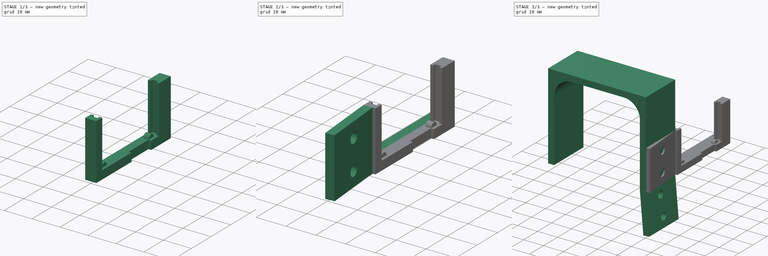
[diagram: build sequence overview — one tinted view per stage of 3, left to right]
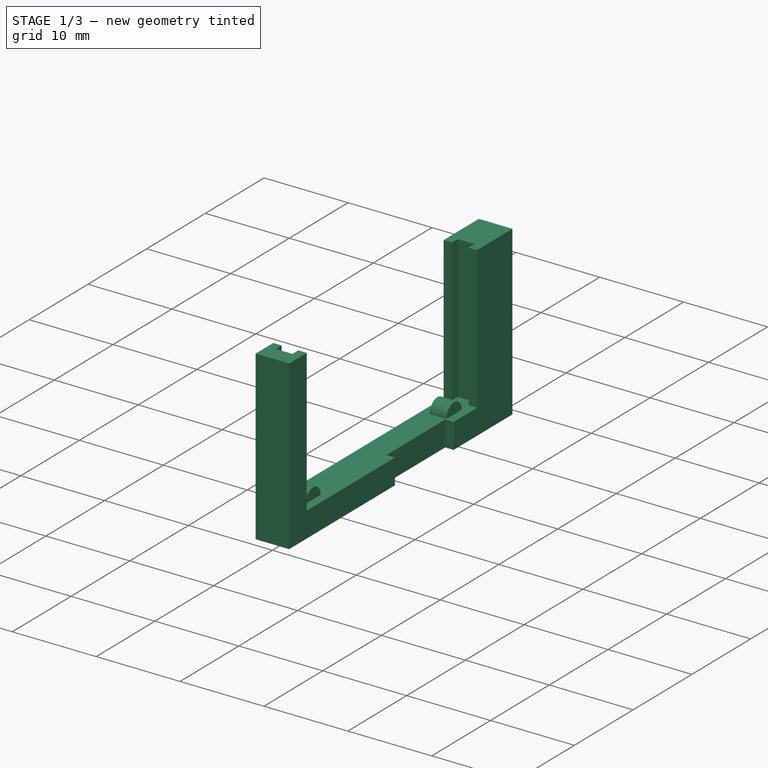
[diagram: stage 1 of 3 — iso view after this stage's code; geometry added in this stage tinted green]
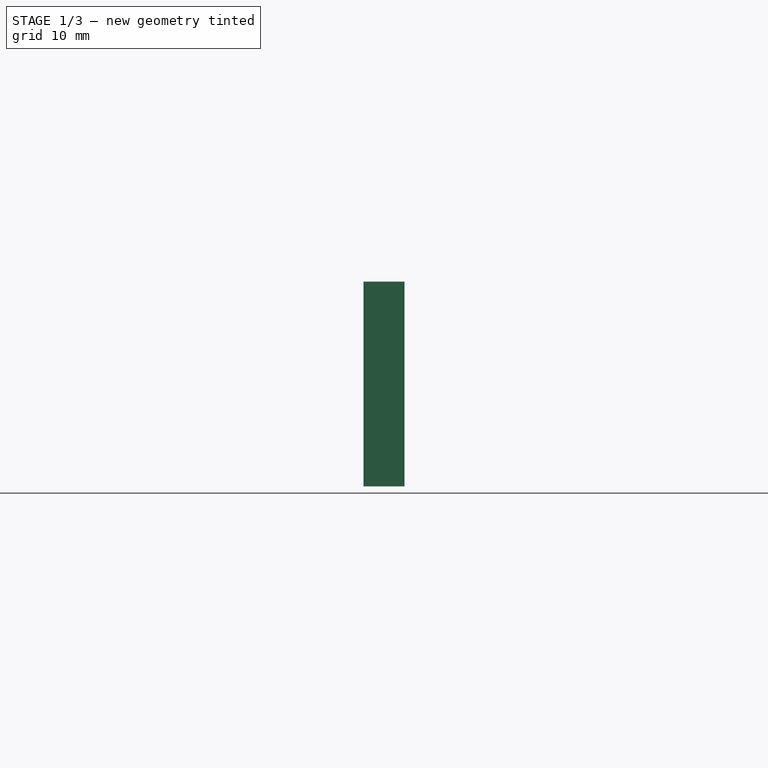
[diagram: stage 1 of 3 — front view after this stage's code; geometry added in this stage tinted green]
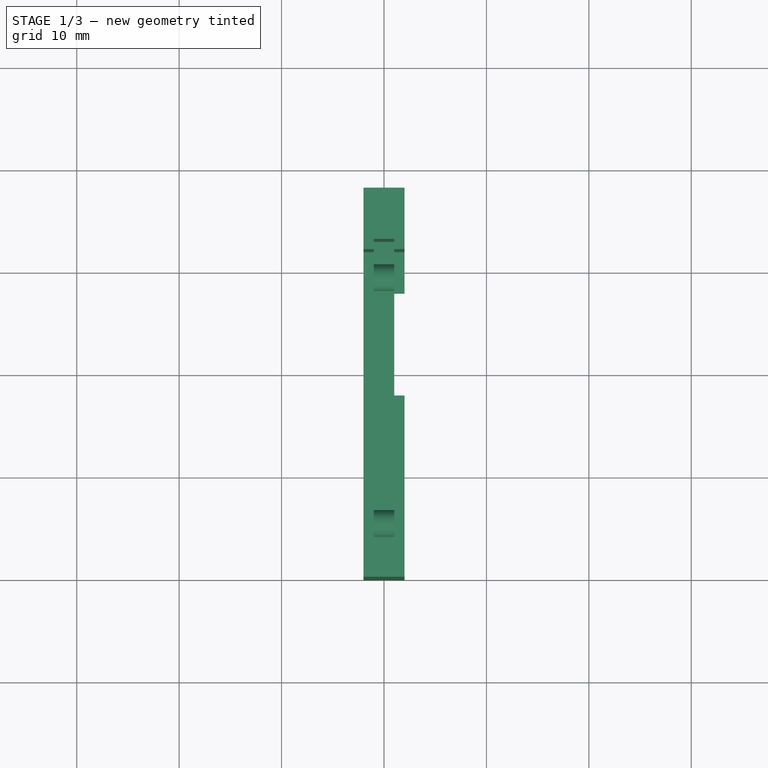
[diagram: stage 1 of 3 — top view after this stage's code; geometry added in this stage tinted green]
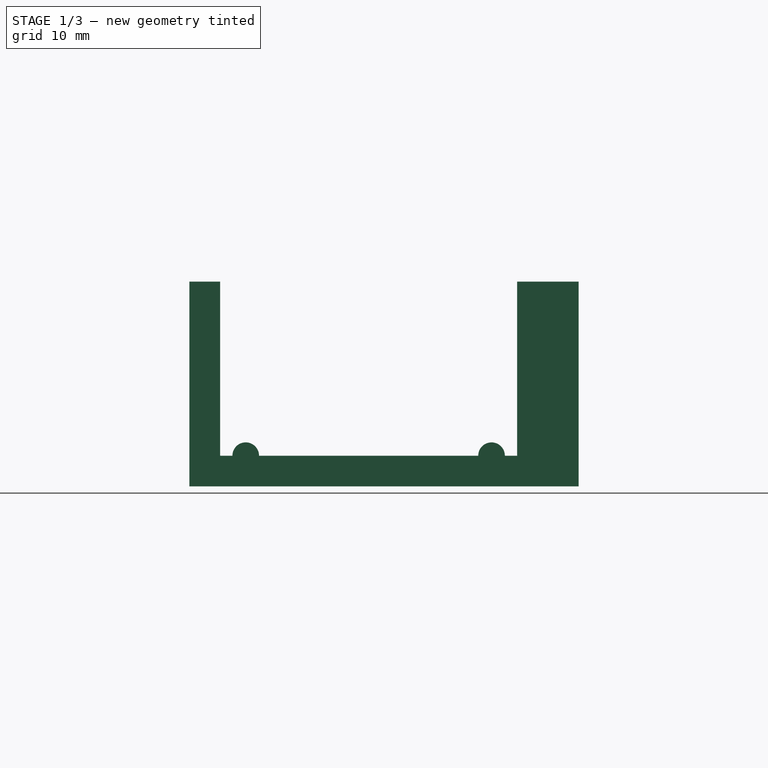
[diagram: stage 1 of 3 — right view after this stage's code; geometry added in this stage tinted green]
FCSTD DOCUMENT  (FreeCAD 1.0R39109 (Git))
Label: KPS-CameraHD 2w
License: All rights reserved
LicenseURL: https://en.wikipedia.org/wiki/All_rights_reserved
objects: Sketcher::SketchObject×7, PartDesign::Pad×7, PartDesign::Body×2, PartDesign::AdditiveBox×1
note: 40 computed .brp shape members not serialized (recipe doc carries the construction recipe); baked Part::Feature solids carry a one-line shape summary decoded from their .brp

FEATURE [PartDesign::Body] Body  label="Clip"
  AllowCompound = false
  Group = -> [Sketch001,Pad001,Sketch,Pad017]
  Origin = -> Origin
  Tip = -> Pad017
FEATURE [Sketcher::SketchObject] Sketch023
  ArcFitTolerance = 0
  AttachmentOffset = pos=(0,0,1) rot=(0,0,1;0rad)
  AttachmentSupport = -> [YZ_Plane004]
  FullyConstrained = true
  MakeInternals = false
  MapMode = 5
  Placement = pos=(1,0,0) rot=(0.57735,0.57735,0.57735;2.0944rad)
  sketch-geometry (12):
    g0: LineSegment StartX=3 StartY=3 StartZ=0 EndX=3 EndY=20 EndZ=0
    g1: LineSegment StartX=3 StartY=20 StartZ=0 EndX=0 EndY=20 EndZ=0
    g2: LineSegment StartX=0 StartY=20 StartZ=0 EndX=0 EndY=0 EndZ=0
    g3: LineSegment StartX=38 StartY=0 StartZ=0 EndX=38 EndY=20 EndZ=0
    g4: LineSegment StartX=38 StartY=20 StartZ=0 EndX=32 EndY=20 EndZ=0
    g5: LineSegment StartX=32 StartY=20 StartZ=0 EndX=32 EndY=3 EndZ=0
    g6: LineSegment StartX=3 StartY=3 StartZ=0 EndX=18 EndY=3 EndZ=0
    g7: LineSegment StartX=32 StartY=3 StartZ=0 EndX=28 EndY=3 EndZ=0
    g8: LineSegment StartX=0 StartY=0 StartZ=0 EndX=18 EndY=0 EndZ=0
    g9: LineSegment StartX=38 StartY=0 StartZ=0 EndX=28 EndY=0 EndZ=0
    g10: LineSegment StartX=18 StartY=3 StartZ=0 EndX=18 EndY=0 EndZ=0
    g11: LineSegment StartX=28 StartY=0 StartZ=0 EndX=28 EndY=3 EndZ=0
  constraints (36):
    c: Vertical(g0)
    c: Coincident(g0,g1)
    c: Horizontal(g1)
    c: Coincident(g1,g2)
    c: Vertical(g2)
    c: Vertical(g3)
    c: Coincident(g3,g4)
    c: Horizontal(g4)
    c: Coincident(g4,g5)
    c: Vertical(g5)
    c: DistanceX(g2) = 0
    c: DistanceY(g2) = 0
    c: DistanceX(g1,g1) = 3
    c: DistanceX(g4,g4) = 6
    c: DistanceX(g0,g5) = 29
    c: DistanceY(g3,g5) = 3
    c: DistanceY(g4,g0) = 0
    c: Coincident(g6,g0)
    c: Horizontal(g6)
    c: Coincident(g7,g5)
    c: Horizontal(g7)
    c: Coincident(g8,g2)
    c: Horizontal(g8)
    c: Coincident(g9,g3)
    c: Horizontal(g9)
    c: DistanceY(g5,g0) = 0
    c: DistanceY(g2,g1) = 20
    c: Coincident(g10,g6)
    c: Coincident(g10,g8)
    c: Coincident(g11,g9)
    c: Coincident(g11,g7)
    c: DistanceY(g8,g9) = 0
    c: Vertical(g10)
    c: Vertical(g11)
    c: DistanceX(g7,g5) = 4
    c: DistanceX(g6,g7) = 10
FEATURE [Sketcher::SketchObject] Sketch024
  ArcFitTolerance = 0
  AttachmentSupport = -> [YZ_Plane004]
  FullyConstrained = true
  MakeInternals = false
  MapMode = 5
  Placement = pos=(0,0,0) rot=(0.57735,0.57735,0.57735;2.0944rad)
  sketch-geometry (12):
    g0: LineSegment StartX=0 StartY=20 StartZ=0 EndX=0 EndY=0 EndZ=0
    g1: LineSegment StartX=0 StartY=0 StartZ=0 EndX=38 EndY=0 EndZ=0
    g2: LineSegment StartX=38 StartY=20 StartZ=0 EndX=33 EndY=20 EndZ=0
    g3: LineSegment StartX=33 StartY=20 StartZ=0 EndX=33 EndY=3 EndZ=0
    g4: LineSegment StartX=33 StartY=3 StartZ=0 EndX=30.8 EndY=3 EndZ=0
    g5: LineSegment StartX=0 StartY=20 StartZ=0 EndX=2 EndY=20 EndZ=0
    g6: LineSegment StartX=2 StartY=20 StartZ=0 EndX=2 EndY=3 EndZ=0
    g7: LineSegment StartX=2 StartY=3 StartZ=0 EndX=4.2 EndY=3 EndZ=0
    g8: LineSegment StartX=6.8 StartY=3 StartZ=0 EndX=28.2 EndY=3 EndZ=0
    g9: ArcOfCircle CenterX=5.5 CenterY=3 CenterZ=0 NormalX=0 NormalY=0 NormalZ=1 AngleXU=0 Radius=1.3 StartAngle=1e-16 EndAngle=3.14159
    g10: ArcOfCircle CenterX=29.5 CenterY=3 CenterZ=0 NormalX=0 NormalY=0 NormalZ=1 AngleXU=0 Radius=1.3 StartAngle=0 EndAngle=3.14159
    g11: LineSegment StartX=38 StartY=0 StartZ=0 EndX=38 EndY=20 EndZ=0
  constraints (38):
    c: Vertical(g0)
    c: Coincident(g0,g1)
    c: Horizontal(g1)
    c: Horizontal(g2)
    c: Coincident(g2,g3)
    c: Vertical(g3)
    c: Coincident(g3,g4)
    c: Horizontal(g4)
    c: Coincident(g0,g5)
    c: Horizontal(g5)
    c: Coincident(g5,g6)
    c: Vertical(g6)
    c: Coincident(g6,g7)
    c: Horizontal(g7)
    c: Horizontal(g8)
    c: Coincident(g9,g7)
    c: Coincident(g9,g8)
    c: Coincident(g10,g4)
    c: Coincident(g10,g8)
    c: DistanceX(g0) = 0
    c: DistanceY(g0) = 0
    c: DistanceX(g5,g5) = 2
    c: DistanceY(g2,g5) = 0
    c: DistanceY(g0,g0) = 20
    c: DistanceY(g1,g3) = 3
    c: DistanceY(g7,g9) = 0
    c: DistanceY(g9,g8) = 0
    c: DistanceY(g8,g10) = 0
    c: DistanceY(g4,g10) = 0
    c: DistanceX(g6,g9) = 3.5
    c: DistanceX(g10,g3) = 3.5
    c: Radius(g9) = 1.3
    c: Radius(g10) = 1.3
    c: DistanceX(g5,g2) = 31
    c: DistanceX(g2,g2) = 5
    c: Coincident(g11,g2)
    c: Vertical(g11)
    c: Coincident(g11,g1)
FEATURE [PartDesign::Pad] Pad026
  Direction = (1,0,0)
  Length = 2
  Length2 = 10
  Midplane = true
  Placement = pos=(0,0,0) rot=(1,1,1;2.0944rad)
  Profile = -> Sketch024
  ReferenceAxis = -> Sketch024 [N_Axis]
  Suppressed = false
  Type = 0
FEATURE [PartDesign::Pad] Pad025
  BaseFeature = -> Pad026
  Direction = (1,0,0)
  Length = 1
  Length2 = 10
  Placement = pos=(0,0,0) rot=(1,1,1;2.0944rad)
  Profile = -> Sketch023
  ReferenceAxis = -> Sketch023 [N_Axis]
  Suppressed = false
  Type = 0
FEATURE [Sketcher::SketchObject] Sketch025
  ArcFitTolerance = 0
  AttachmentOffset = pos=(0,0,-1) rot=(0,0,1;0rad)
  AttachmentSupport = -> [YZ_Plane004]
  FullyConstrained = true
  MakeInternals = false
  MapMode = 5
  Placement = pos=(-1,0,0) rot=(0.57735,0.57735,0.57735;2.0944rad)
  sketch-geometry (8):
    g0: LineSegment StartX=3 StartY=3 StartZ=0 EndX=3 EndY=20 EndZ=0
    g1: LineSegment StartX=3 StartY=20 StartZ=0 EndX=0 EndY=20 EndZ=0
    g2: LineSegment StartX=0 StartY=20 StartZ=0 EndX=0 EndY=0 EndZ=0
    g3: LineSegment StartX=0 StartY=0 StartZ=0 EndX=38 EndY=0 EndZ=0
    g4: LineSegment StartX=38 StartY=0 StartZ=0 EndX=38 EndY=20 EndZ=0
    g5: LineSegment StartX=38 StartY=20 StartZ=0 EndX=32 EndY=20 EndZ=0
    g6: LineSegment StartX=32 StartY=20 StartZ=0 EndX=32 EndY=3 EndZ=0
    g7: LineSegment StartX=32 StartY=3 StartZ=0 EndX=3 EndY=3 EndZ=0
  constraints (24):
    c: Vertical(g0)
    c: Coincident(g0,g1)
    c: Horizontal(g1)
    c: Coincident(g1,g2)
    c: Vertical(g2)
    c: Coincident(g2,g3)
    c: Horizontal(g3)
    c: Coincident(g3,g4)
    c: Vertical(g4)
    c: Coincident(g4,g5)
    c: Horizontal(g5)
    c: Coincident(g5,g6)
    c: Vertical(g6)
    c: Coincident(g6,g7)
    c: Coincident(g7,g0)
    c: Horizontal(g7)
    c: DistanceX(g2) = 0
    c: DistanceY(g2) = 0
    c: DistanceX(g1,g1) = 3
    c: DistanceX(g5,g5) = 6
    c: DistanceX(g7,g7) = 29
    c: DistanceY(g4,g4) = 20
    c: DistanceY(g3,g6) = 3
    c: DistanceY(g5,g0) = 0
FEATURE [PartDesign::Pad] Pad027  label="Camera"
  BaseFeature = -> Pad025
  Direction = (1,0,0)
  Length = 1
  Length2 = 10
  Placement = pos=(0,0,0) rot=(1,1,1;2.0944rad)
  Profile = -> Sketch025
  ReferenceAxis = -> Sketch025 [N_Axis]
  Reversed = true
  Suppressed = false
  Type = 0
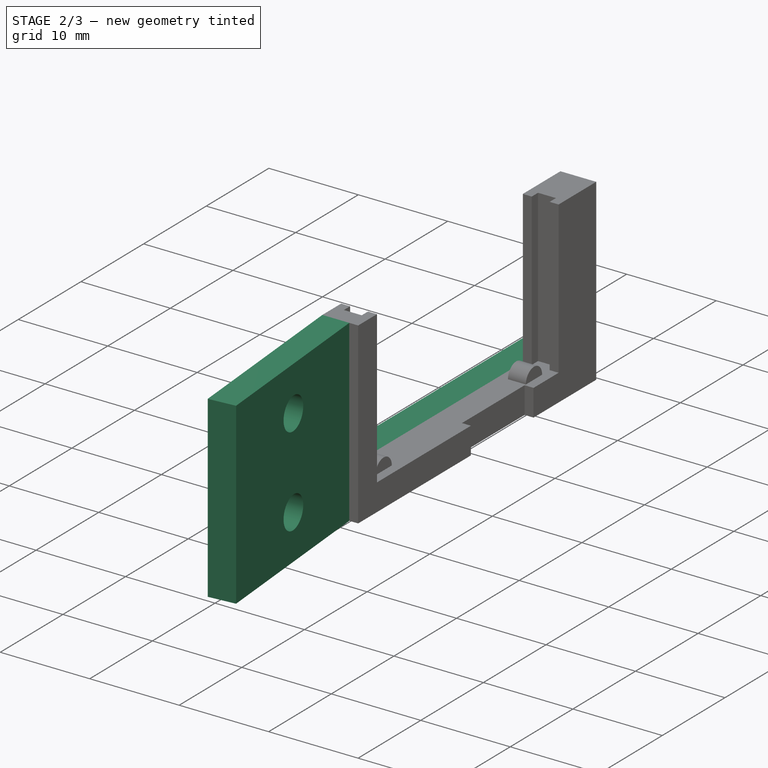
[diagram: stage 2 of 3 — iso view after this stage's code; geometry added in this stage tinted green]
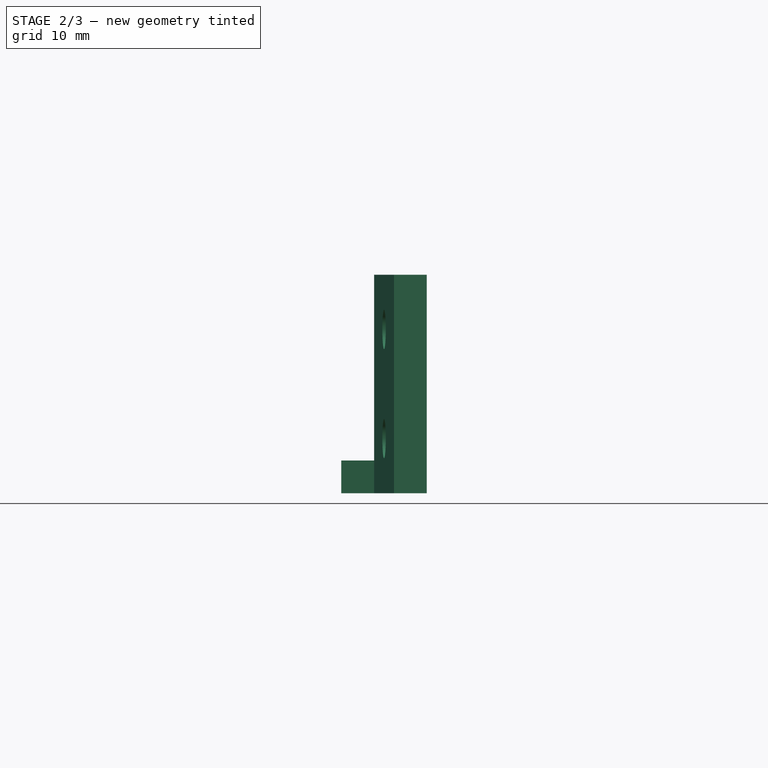
[diagram: stage 2 of 3 — front view after this stage's code; geometry added in this stage tinted green]
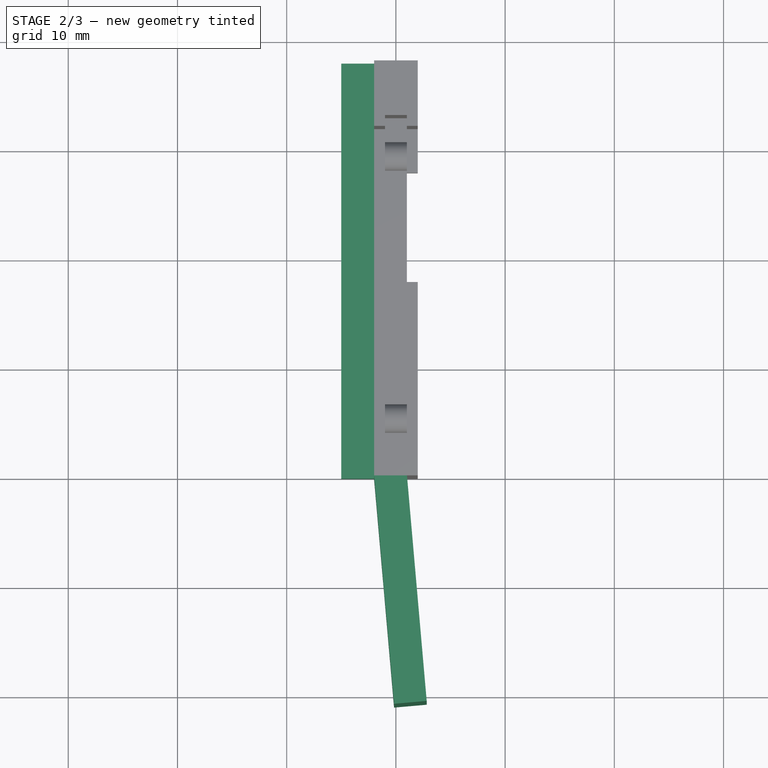
[diagram: stage 2 of 3 — top view after this stage's code; geometry added in this stage tinted green]
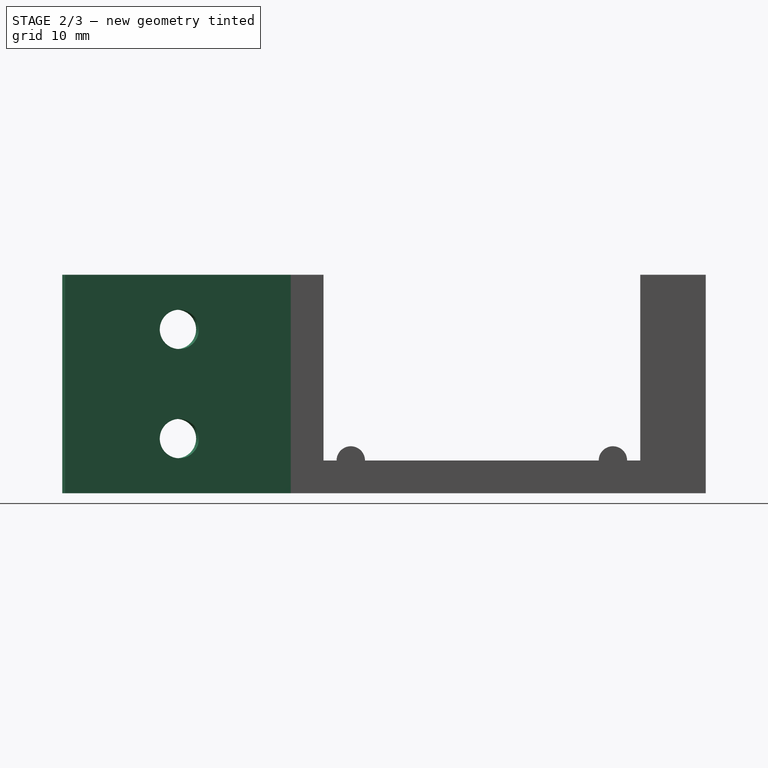
[diagram: stage 2 of 3 — right view after this stage's code; geometry added in this stage tinted green]
FEATURE [Sketcher::SketchObject] Sketch026
  ArcFitTolerance = 0
  AttachmentOffset = pos=(0,0,-2) rot=(0,1,0;0.087266rad)
  AttachmentSupport = -> [YZ_Plane004]
  FullyConstrained = true
  MakeInternals = false
  MapMode = 5
  Placement = pos=(-2,0,0) rot=(0.543775,0.593426,0.593426;2.14549rad)
  sketch-geometry (6):
    g0: LineSegment StartX=-21 StartY=20 StartZ=0 EndX=-21 EndY=0 EndZ=0
    g1: LineSegment StartX=-21 StartY=20 StartZ=0 EndX=0 EndY=20 EndZ=0
    g2: LineSegment StartX=0 StartY=20 StartZ=0 EndX=0 EndY=0 EndZ=0
    g3: Circle CenterX=-10.5 CenterY=15 CenterZ=0 NormalX=0 NormalY=0 NormalZ=1 AngleXU=0 Radius=1.8
    g4: Circle CenterX=-10.5 CenterY=5 CenterZ=0 NormalX=0 NormalY=0 NormalZ=1 AngleXU=0 Radius=1.8
    g5: LineSegment StartX=-21 StartY=0 StartZ=0 EndX=0 EndY=0 EndZ=0
  constraints (17):
    c: Vertical(g0)
    c: Coincident(g0,g1)
    c: Horizontal(g1)
    c: Coincident(g1,g2)
    c: Vertical(g2)
    c: DistanceX(g0) = -21
    c: DistanceY(g0) = 0
    c: DistanceY(g0,g0) = 20
    c: DistanceX(g4,g3) = 0
    c: DistanceX(g4,g-1) = 10.5
    c: DistanceY(g4,g3) = 10
    c: DistanceY(g-1,g4) = 5
    c: Radius(g3) = 1.8
    c: Radius(g4) = 1.8
    c: Coincident(g2,g-1)
    c: Coincident(g5,g0)
    c: Coincident(g5,g2)
FEATURE [PartDesign::Pad] Pad024  label="Link"
  BaseFeature = -> Pad027
  Direction = (0.996195,0.0871557,0)
  Length = 3
  Length2 = 10
  Placement = pos=(0,0,0) rot=(1,1,1;2.0944rad)
  Profile = -> Sketch026
  ReferenceAxis = -> Sketch026 [N_Axis]
  Suppressed = false
  Type = 0
FEATURE [PartDesign::AdditiveBox] Box
  AttacherType = Attacher::AttachEngine3D
  AttachmentOffset = pos=(0,0,-5) rot=(0,0,1;0rad)
  AttachmentSupport = -> [YZ_Plane004]
  BaseFeature = -> Pad024
  Height = 3
  Length = 38
  MapMode = 5
  Placement = pos=(-5,0,0) rot=(0.57735,0.57735,0.57735;2.0944rad)
  Suppressed = false
  Width = 3
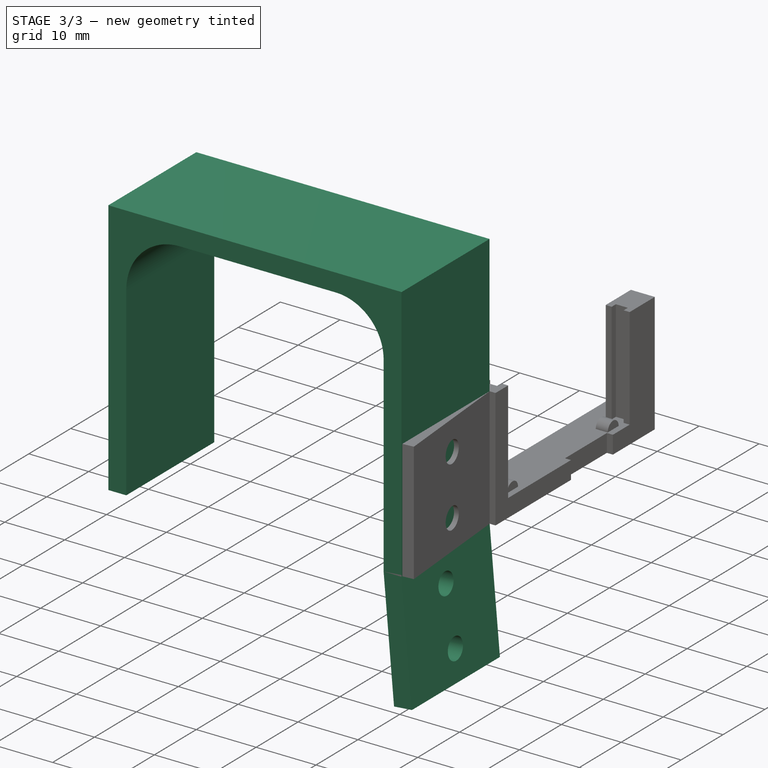
[diagram: stage 3 of 3 — iso view after this stage's code; geometry added in this stage tinted green]
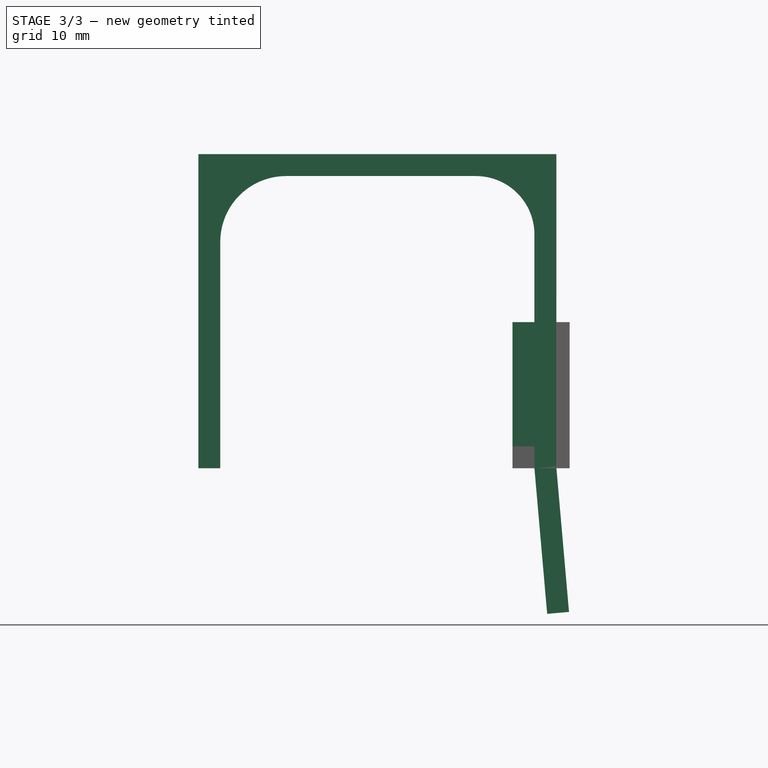
[diagram: stage 3 of 3 — front view after this stage's code; geometry added in this stage tinted green]
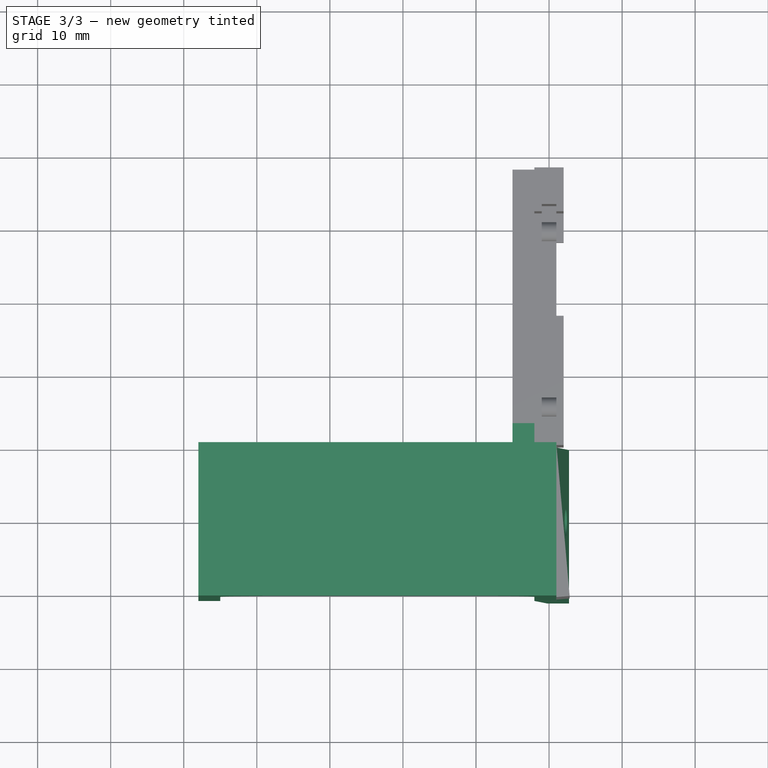
[diagram: stage 3 of 3 — top view after this stage's code; geometry added in this stage tinted green]
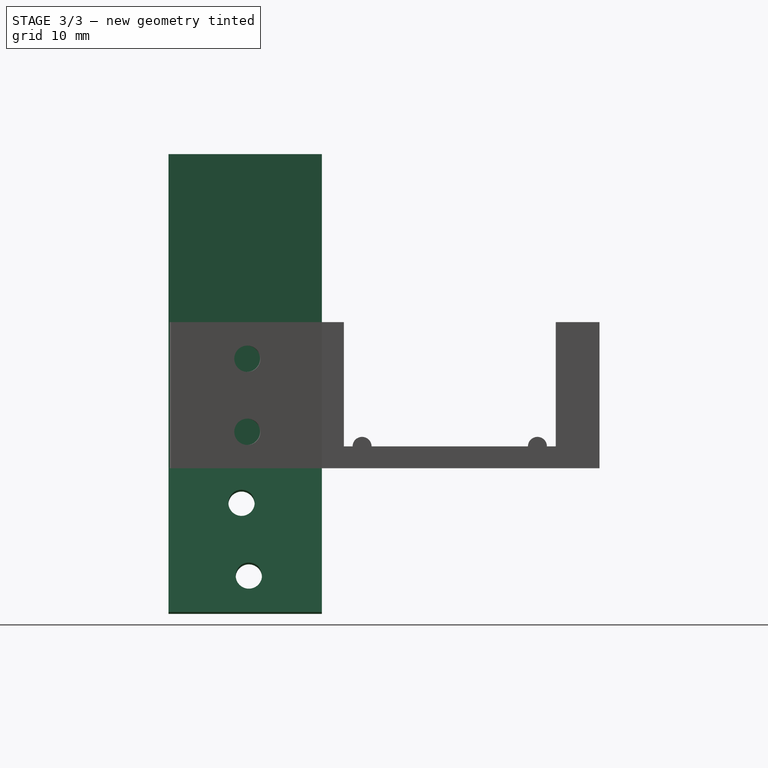
[diagram: stage 3 of 3 — right view after this stage's code; geometry added in this stage tinted green]
FEATURE [Sketcher::SketchObject] Sketch001
  ArcFitTolerance = 0
  AttachmentSupport = -> [XZ_Plane]
  FullyConstrained = true
  MakeInternals = false
  MapMode = 5
  Placement = pos=(0,0,0) rot=(1,0,0;1.5708rad)
  sketch-geometry (10):
    g0: LineSegment StartX=1 StartY=43 StartZ=0 EndX=-48 EndY=43 EndZ=0
    g1: LineSegment StartX=-10 StartY=40 StartZ=0 EndX=-36 EndY=40 EndZ=0
    g2: ArcOfCircle CenterX=-10 CenterY=32 CenterZ=0 NormalX=0 NormalY=0 NormalZ=1 AngleXU=0 Radius=8 StartAngle=2e-16 EndAngle=1.5708
    g3: ArcOfCircle CenterX=-36 CenterY=31 CenterZ=0 NormalX=0 NormalY=0 NormalZ=1 AngleXU=0 Radius=9 StartAngle=1.5708 EndAngle=3.14159
    g4: LineSegment StartX=-2 StartY=32 StartZ=0 EndX=-2 EndY=0 EndZ=0
    g5: LineSegment StartX=1 StartY=43 StartZ=0 EndX=1 EndY=0 EndZ=0
    g6: LineSegment StartX=-45 StartY=31 StartZ=0 EndX=-45 EndY=0 EndZ=0
    g7: LineSegment StartX=-45 StartY=0 StartZ=0 EndX=-48 EndY=0 EndZ=0
    g8: LineSegment StartX=-48 StartY=0 StartZ=0 EndX=-48 EndY=43 EndZ=0
    g9: LineSegment StartX=1 StartY=0 StartZ=0 EndX=-2 EndY=0 EndZ=0
  constraints (32):
    c: Horizontal(g0)
    c: DistanceY(g-1,g0) = 43
    c: Horizontal(g1)
    c: DistanceY(g1,g0) = 3
    c: Coincident(g2,g1)
    c: Coincident(g3,g1)
    c: Coincident(g4,g2)
    c: Vertical(g4)
    c: Vertical(g5)
    c: DistanceY(g5) = 0
    c: DistanceY(g2,g2) = 0
    c: DistanceX(g2,g5) = 3
    c: Coincident(g6,g7)
    c: Horizontal(g7)
    c: Coincident(g7,g8)
    c: Vertical(g8)
    c: Vertical(g6)
    c: Coincident(g3,g6)
    c: Coincident(g9,g5)
    c: Coincident(g9,g4)
    c: Horizontal(g9)
    c: DistanceX(g2,g5) = 11
    c: DistanceX(g6,g4) = 43
    c: DistanceX(g2,g1) = 0
    c: DistanceX(g5,g-1) = -1
    c: Coincident(g0,g5)
    c: DistanceX(g3,g1) = 0
    c: DistanceY(g3,g3) = 0
    c: Coincident(g0,g8)
    c: DistanceX(g7,g7) = 3
    c: Radius(g3) = 9
    c: DistanceY(g4,g6) = 0
FEATURE [PartDesign::Pad] Pad001
  Direction = (0,-1,2e-16)
  Length = 21
  Length2 = 10
  Placement = pos=(0,0,0) rot=(1,0,0;1.5708rad)
  Profile = -> Sketch001
  ReferenceAxis = -> Sketch001 [N_Axis]
  Suppressed = false
  Type = 0
FEATURE [Sketcher::SketchObject] Sketch
  ArcFitTolerance = 0
  AttachmentOffset = pos=(0,0,-2) rot=(1,0,0;-0.087266rad)
  AttachmentSupport = -> [YZ_Plane]
  FullyConstrained = true
  MakeInternals = false
  MapMode = 5
  Placement = pos=(-2,0,0) rot=(-0.559809,-0.559809,-0.610924;4.23842rad)
  sketch-geometry (6):
    g0: LineSegment StartX=0 StartY=0 StartZ=0 EndX=-21 EndY=0 EndZ=0
    g1: LineSegment StartX=-21 StartY=0 StartZ=0 EndX=-21 EndY=-20 EndZ=0
    g2: LineSegment StartX=-21 StartY=-20 StartZ=0 EndX=0 EndY=-20 EndZ=0
    g3: LineSegment StartX=0 StartY=-20 StartZ=0 EndX=0 EndY=0 EndZ=0
    g4: Circle CenterX=-11 CenterY=-5 CenterZ=0 NormalX=0 NormalY=0 NormalZ=1 AngleXU=0 Radius=1.8
    g5: Circle CenterX=-10 CenterY=-15 CenterZ=0 NormalX=0 NormalY=0 NormalZ=1 AngleXU=0 Radius=1.8
  constraints (17):
    c: Coincident(g0,g1)
    c: Coincident(g1,g2)
    c: Coincident(g2,g3)
    c: Coincident(g3,g0)
    c: Horizontal(g0)
    c: Horizontal(g2)
    c: Vertical(g1)
    c: Vertical(g3)
    c: Coincident(g0,g-1)
    c: DistanceX(g2,g2) = 21
    c: DistanceY(g1,g1) = 20
    c: Radius(g4) = 1.8
    c: Radius(g5) = 1.8
    c: DistanceX(g5,g4) = -1
    c: DistanceY(g5,g4) = 10
    c: DistanceY(g4,g0) = 5
    c: DistanceX(g4,g0) = 11
FEATURE [PartDesign::Pad] Pad017
  BaseFeature = -> Pad001
  Direction = (0.996195,0,0.0871557)
  Length = 3
  Length2 = 10
  Placement = pos=(0,0,0) rot=(1,0,0;1.5708rad)
  Profile = -> Sketch
  ReferenceAxis = -> Sketch [N_Axis]
  Suppressed = false
  Type = 0
FEATURE [Sketcher::SketchObject] Sketch030
  ArcFitTolerance = 0
  AttachmentSupport = -> [XY_Plane004]
  FullyConstrained = true
  MakeInternals = false
  MapMode = 5
  sketch-geometry (4):
    g0: LineSegment StartX=-5 StartY=3 StartZ=0 EndX=-2 EndY=3 EndZ=0
    g1: LineSegment StartX=-2 StartY=3 StartZ=0 EndX=-2 EndY=0 EndZ=0
    g2: LineSegment StartX=-2 StartY=0 StartZ=0 EndX=-5 EndY=0 EndZ=0
    g3: LineSegment StartX=-5 StartY=0 StartZ=0 EndX=-5 EndY=3 EndZ=0
  constraints (12):
    c: Coincident(g0,g1)
    c: Coincident(g1,g2)
    c: Coincident(g2,g3)
    c: Coincident(g3,g0)
    c: Horizontal(g0)
    c: Horizontal(g2)
    c: Vertical(g1)
    c: Vertical(g3)
    c: DistanceY(g3,g3) = 3
    c: DistanceX(g0,g0) = 3
    c: DistanceY(g2,g-1) = 0
    c: DistanceX(g0,g-1) = 5
FEATURE [PartDesign::Pad] Pad031
  BaseFeature = -> Box
  Direction = (0,0,1)
  Length = 20
  Length2 = 10
  Placement = pos=(-5,0,0) rot=(0.57735,0.57735,0.57735;2.0944rad)
  Profile = -> Sketch030
  ReferenceAxis = -> Sketch030 [N_Axis]
  Suppressed = false
  Type = 0
FEATURE [PartDesign::Body] Body004  label="Frame"
  AllowCompound = false
  Group = -> [Pad026,Sketch023,Pad025,Sketch024,Sketch025,Pad027,Sketch026,Pad024,Box,Sketch030,Pad031]
  Origin = -> Origin004
  Placement = pos=(5,-0.1,-19.5) rot=(0.030858,-0.70677,-0.70677;0.123394rad)
  Tip = -> Pad031
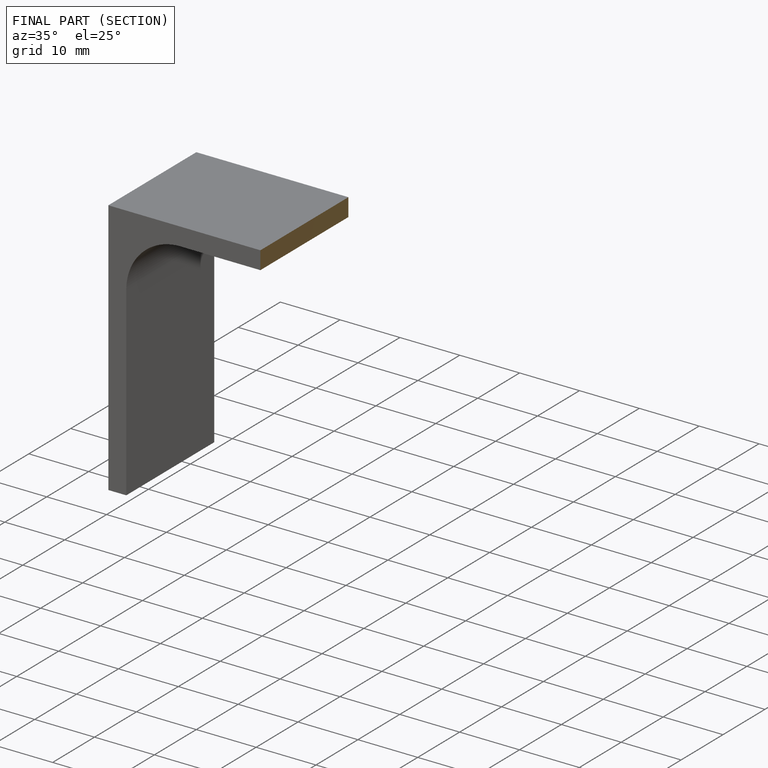
[diagram: finished part — half-section view (interior)]
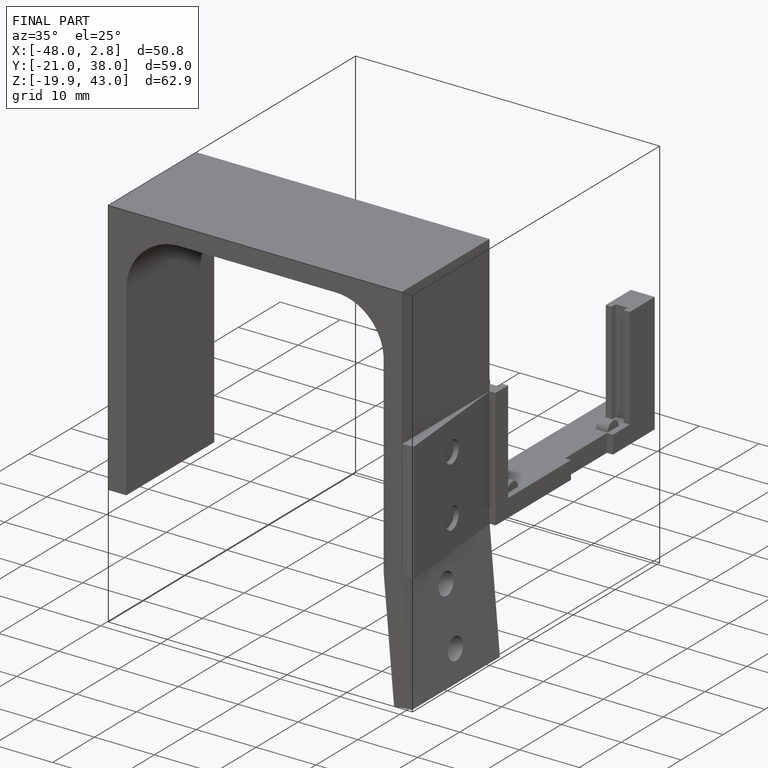
[diagram: finished part — iso view with bounding-box wireframe]
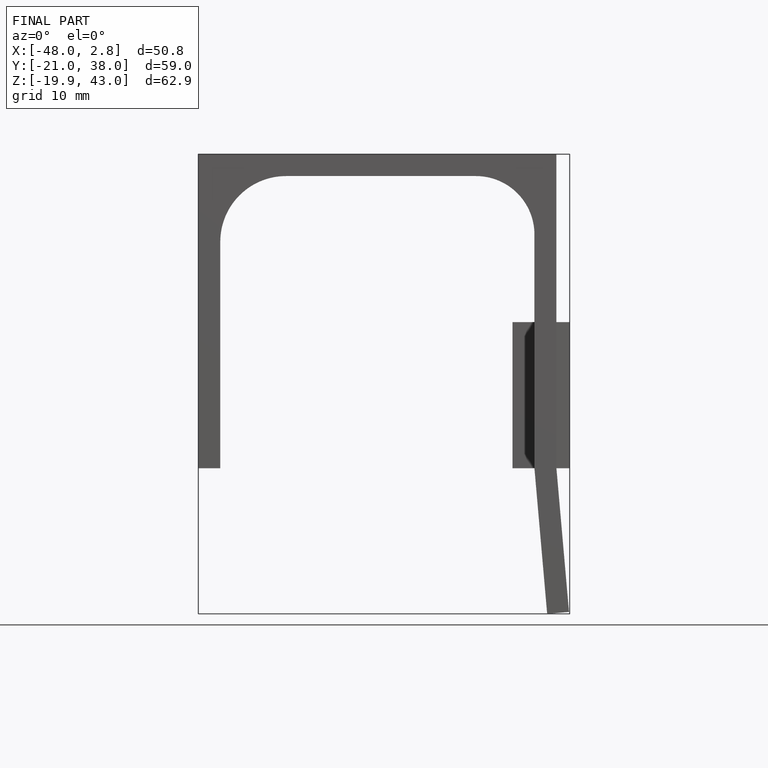
[diagram: finished part — front view with bounding-box wireframe]
